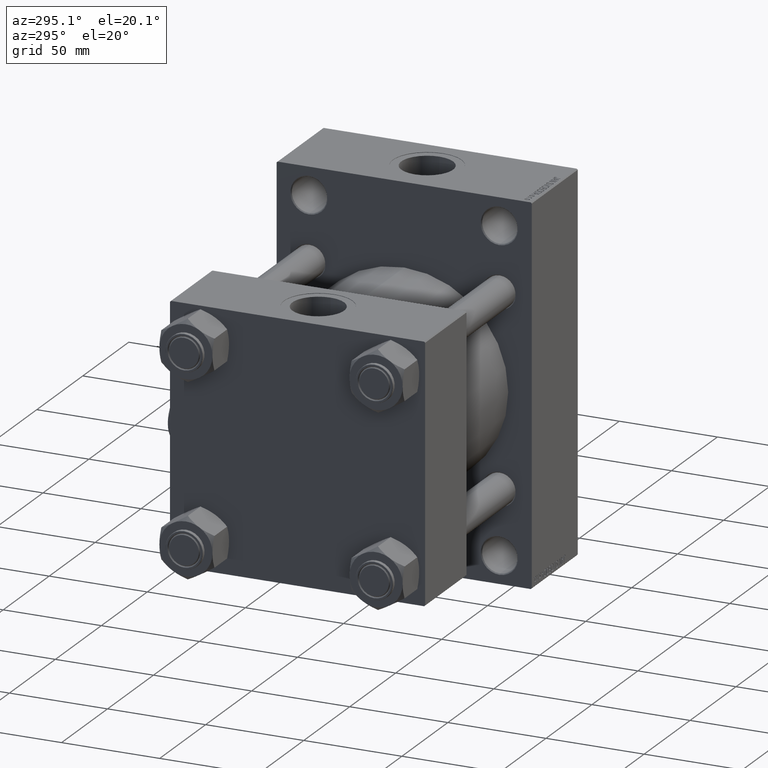
[diagram: clean part render]
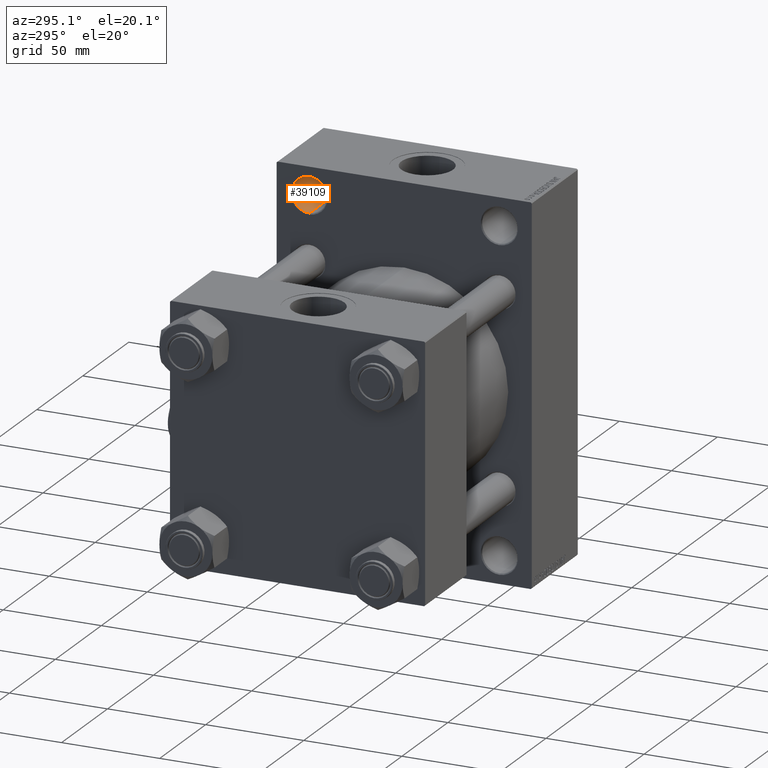
[diagram: same view with one face highlighted and labeled with its STEP entity id]
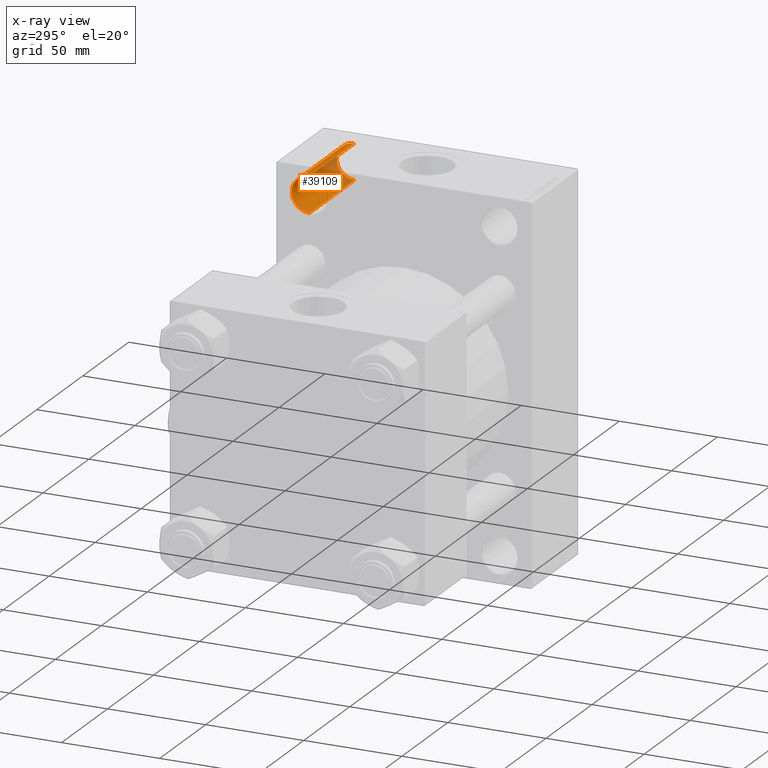
[diagram: x-ray of the same camera — body ghosted, the highlighted face saturated]
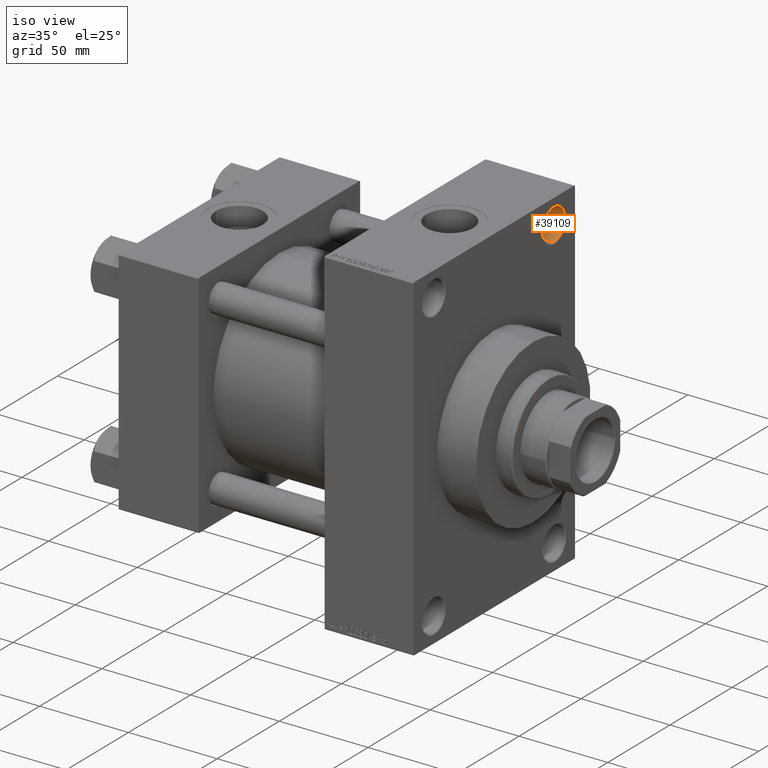
[diagram: same view with one face highlighted and labeled with its STEP entity id]
A machine part, auxiliary view. The second image highlights one B-rep face of the part: STEP entity #39109.
The next image is the same camera in x-ray: the body ghosted, the highlighted face saturated — about 34% of this face is hidden behind the body in this view.
A second angle (iso view) of the same face is appended — the face is thin or edge-on in the first view.
In plain terms, the highlighted cylindrical surface (edge-blend (fillet) strip) has radius 9 mm, axis along (1, 0, 0).
Its self-contained STEP definition (entity closure, byte-faithful):
#237 = CARTESIAN_POINT ( 'NONE',  ( 90.54415587728428250, 48.50000000000000000, 90.00000000000000000 ) ) ;
#710 = DIRECTION ( 'NONE',  ( -1.000000000000000000, -0.000000000000000000, -0.000000000000000000 ) ) ;
#1078 = AXIS2_PLACEMENT_3D ( 'NONE', #37186, #33179, #25622 ) ;
#2025 = VECTOR ( 'NONE', #35062, 1000.000000000000000 ) ;
#3273 = DIRECTION ( 'NONE',  ( 1.000000000000000000, -0.000000000000000000, -0.000000000000000000 ) ) ;
#3823 = CARTESIAN_POINT ( 'NONE',  ( 165.5000000000000568, 48.50000000000000000, 72.00000000000001421 ) ) ;
#3858 = CARTESIAN_POINT ( 'NONE',  ( 116.4999999999999289, 48.50000000000000000, 90.00000000000000000 ) ) ;
#4313 = CIRCLE ( 'NONE', #1078, 8.999999999999994671 ) ;
#5126 = AXIS2_PLACEMENT_3D ( 'NONE', #31715, #47069, #12569 ) ;
#5196 = CARTESIAN_POINT ( 'NONE',  ( 116.4999999999999289, 48.50000000000000000, 72.00000000000001421 ) ) ;
#5275 = ORIENTED_EDGE ( 'NONE', *, *, #18023, .T. ) ;
#10922 = ORIENTED_EDGE ( 'NONE', *, *, #46014, .T. ) ;
#12569 = DIRECTION ( 'NONE',  ( 0.000000000000000000, 0.000000000000000000, -1.000000000000000000 ) ) ;
#14318 = VERTEX_POINT ( 'NONE', #3823 ) ;
#16101 = CYLINDRICAL_SURFACE ( 'NONE', #5126, 8.999999999999994671 ) ;
#16351 = FACE_OUTER_BOUND ( 'NONE', #49395, .T. ) ;
#17681 = ORIENTED_EDGE ( 'NONE', *, *, #22485, .T. ) ;
#18023 = EDGE_CURVE ( 'NONE', #14318, #29034, #4313, .T. ) ;
#18673 = EDGE_CURVE ( 'NONE', #41698, #29034, #41787, .T. ) ;
#22485 = EDGE_CURVE ( 'NONE', #41698, #31606, #45466, .T. ) ;
#25622 = DIRECTION ( 'NONE',  ( 0.000000000000000000, 0.000000000000000000, 1.000000000000000000 ) ) ;
#28412 = VECTOR ( 'NONE', #3273, 1000.000000000000000 ) ;
#29034 = VERTEX_POINT ( 'NONE', #34559 ) ;
#31606 = VERTEX_POINT ( 'NONE', #5196 ) ;
#31715 = CARTESIAN_POINT ( 'NONE',  ( 90.54415587728428250, 48.50000000000000000, 81.00000000000000000 ) ) ;
#31782 = CARTESIAN_POINT ( 'NONE',  ( 90.54415587728428250, 48.50000000000000000, 72.00000000000001421 ) ) ;
#32264 = LINE ( 'NONE', #31782, #2025 ) ;
#33179 = DIRECTION ( 'NONE',  ( 1.000000000000000000, 0.000000000000000000, 0.000000000000000000 ) ) ;
#34559 = CARTESIAN_POINT ( 'NONE',  ( 165.5000000000000568, 48.50000000000000000, 90.00000000000000000 ) ) ;
#35062 = DIRECTION ( 'NONE',  ( 1.000000000000000000, -0.000000000000000000, -0.000000000000000000 ) ) ;
#37186 = CARTESIAN_POINT ( 'NONE',  ( 165.5000000000000568, 48.50000000000000000, 81.00000000000000000 ) ) ;
#39109 = ADVANCED_FACE ( 'NONE', ( #16351 ), #16101, .F. ) ;
#41698 = VERTEX_POINT ( 'NONE', #3858 ) ;
#41787 = LINE ( 'NONE', #237, #28412 ) ;
#42014 = CARTESIAN_POINT ( 'NONE',  ( 116.4999999999999289, 48.50000000000000000, 81.00000000000000000 ) ) ;
#45466 = CIRCLE ( 'NONE', #48661, 8.999999999999994671 ) ;
#45662 = ORIENTED_EDGE ( 'NONE', *, *, #18673, .F. ) ;
#46014 = EDGE_CURVE ( 'NONE', #31606, #14318, #32264, .T. ) ;
#47069 = DIRECTION ( 'NONE',  ( 1.000000000000000000, -0.000000000000000000, -0.000000000000000000 ) ) ;
#48661 = AXIS2_PLACEMENT_3D ( 'NONE', #42014, #710, #49829 ) ;
#49395 = EDGE_LOOP ( 'NONE', ( #45662, #17681, #10922, #5275 ) ) ;
#49829 = DIRECTION ( 'NONE',  ( 0.000000000000000000, 0.000000000000000000, 1.000000000000000000 ) ) ;